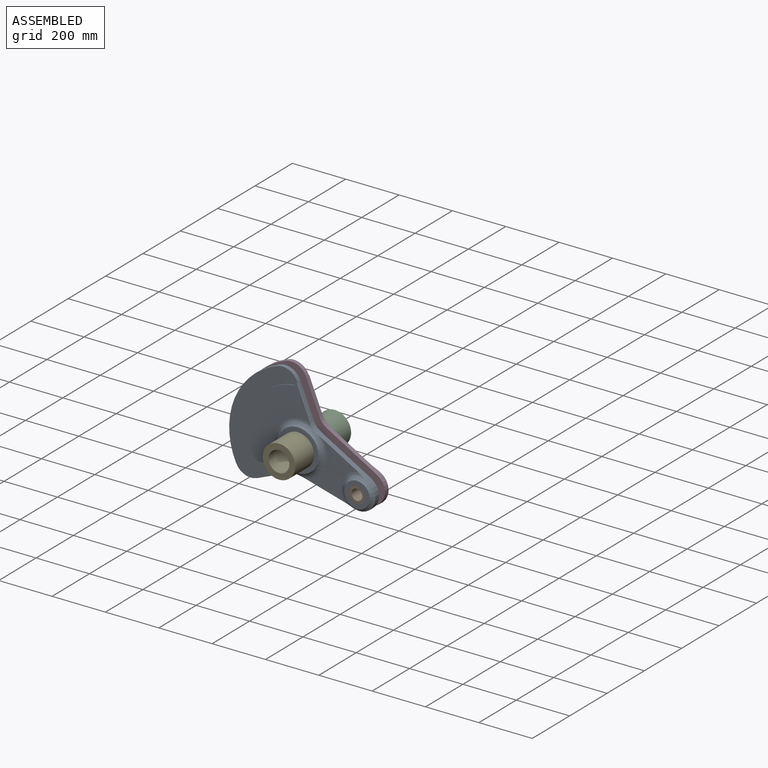
[diagram: assembled view]
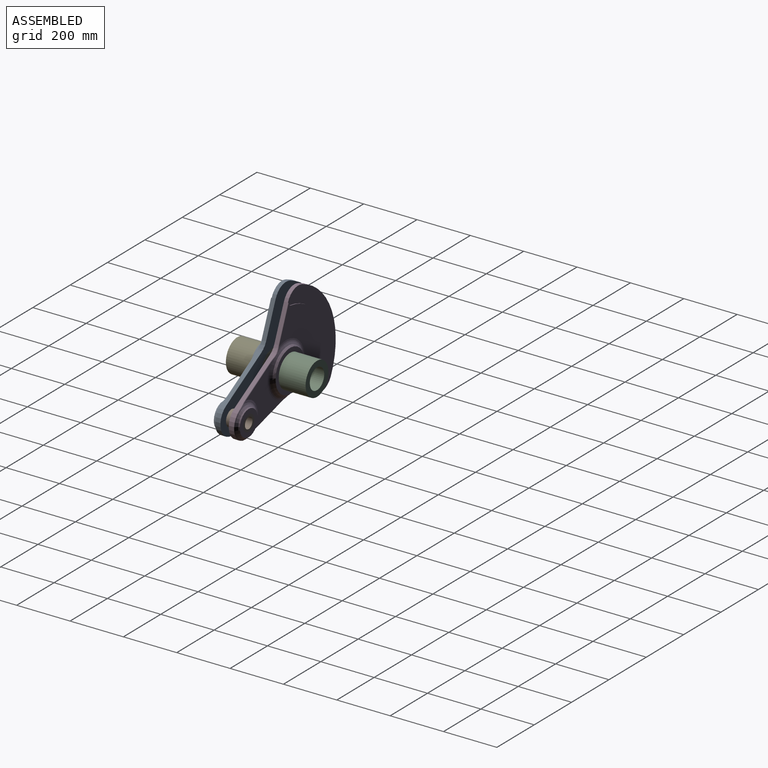
[diagram: assembled view, second angle]
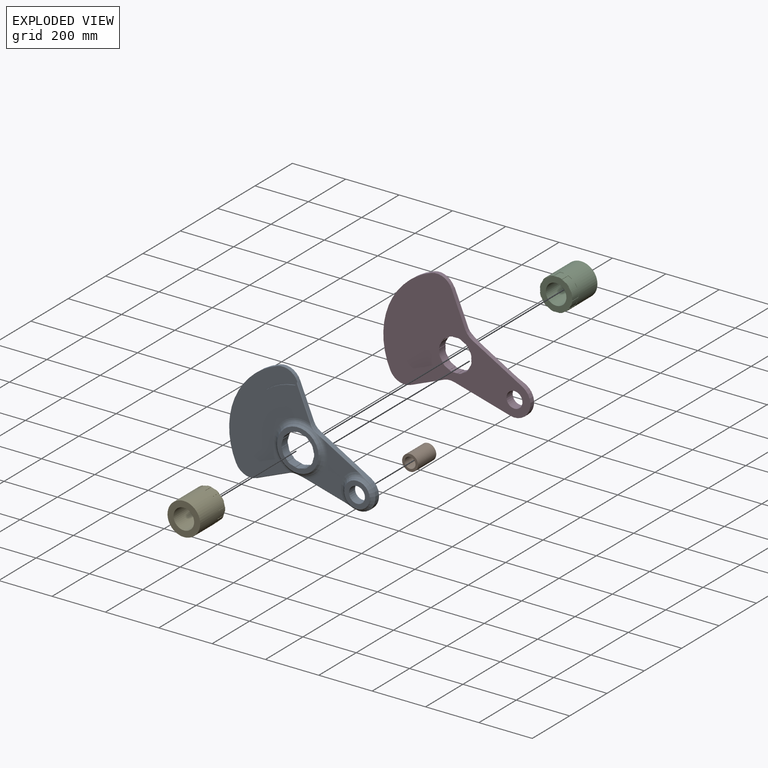
[diagram: exploded view]
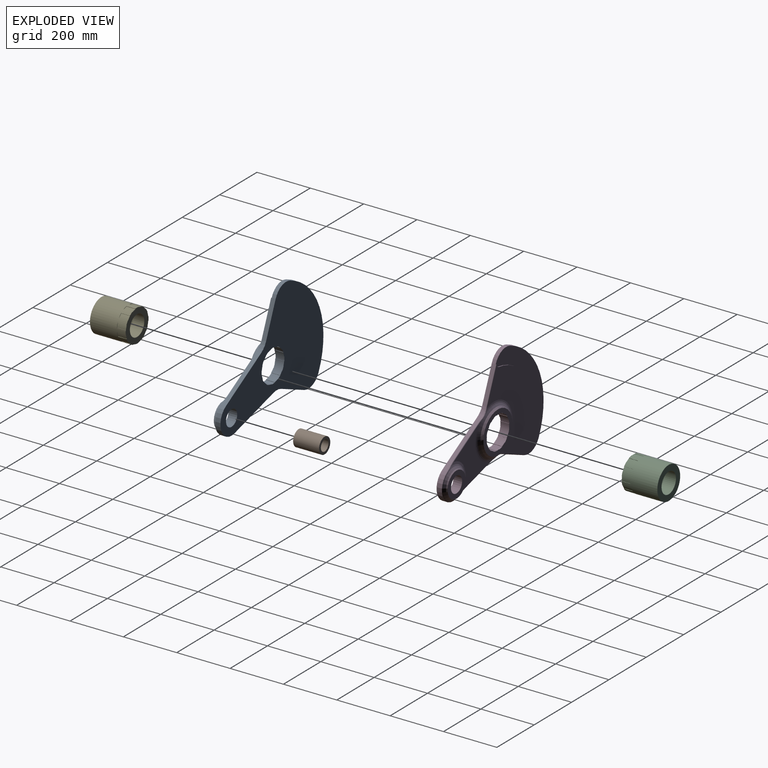
[diagram: exploded view, second angle]
ASSEMBLY  parts=5 mates=4
PART A: 85 faces, bbox 432.4x42.2x604.6 mm
  f0: cylinder r=60mm len=82.55mm, axis (0,1,0), area 1355.2mm2, adj f1,f3,f24,f84
  f1: cylinder r=270mm len=401.48mm, axis (0,1,0), area 6735.6mm2, adj f0,f2,f3,f84
  f2: cylinder r=60mm len=82.55mm, axis (0,1,0), area 1355.2mm2, adj f1,f3,f18,f84
  f3: plane 570x432.26mm, normal (0,1,0), area 116787.6mm2, adj f0,f1,f2,f5,f6,f7,f8,f9
  f4: plane 156x156mm, normal (0,-1,0), area 7575.3mm2, adj f5,f6,f7,f8,f9,f10,f11,f12
  f5: cylinder r=60mm len=33mm, axis (0,1,0), area 518.4mm2, adj f3,f4,f30,f63
  f6: cylinder r=60mm len=33mm, axis (0,1,0), area 518.4mm2, adj f3,f4,f60,f64
  f7: cylinder r=60mm len=33mm, axis (0,1,0), area 518.4mm2, adj f3,f4,f57,f61
  f8: cylinder r=60mm len=33mm, axis (0,1,0), area 518.4mm2, adj f3,f4,f54,f58
  f9: cylinder r=60mm len=33mm, axis (0,1,0), area 518.4mm2, adj f3,f4,f51,f55
  f10: cylinder r=60mm len=33mm, axis (0,1,0), area 518.4mm2, adj f3,f4,f48,f52
  f11: cylinder r=60mm len=33mm, axis (0,1,0), area 518.4mm2, adj f3,f4,f45,f49
  f12: cylinder r=60mm len=33mm, axis (0,1,0), area 518.4mm2, adj f3,f4,f42,f46
  f13: cylinder r=60mm len=33mm, axis (0,1,0), area 518.4mm2, adj f3,f4,f39,f43
  f14: cylinder r=60mm len=33mm, axis (0,1,0), area 518.4mm2, adj f3,f4,f36,f40
  f15: cylinder r=60mm len=33mm, axis (0,1,0), area 518.4mm2, adj f3,f4,f33,f37
  f16: cylinder r=60mm len=33mm, axis (0,1,0), area 518.4mm2, adj f3,f4,f31,f34
  f17: plane 161.64x147.99mm, normal (0,-1,0), area 13202.3mm2, adj f28,f29,f70,f74
  f18: plane 94.73x94.73mm, normal (0.71,0,0.71), area 2089.9mm2, adj f2,f3,f19,f78,f80
  f19: cylinder r=60mm len=34.93mm, axis (0,1,0), area 674.4mm2, adj f3,f18,f20,f76,f77
  f20: plane 215.89x27.23mm, normal (0.99,0,0.12), area 3483.1mm2, adj f3,f19,f21,f73,f74,f75
  f21: cylinder r=60mm len=119.06mm, axis (0,1,0), area 3265.7mm2, adj f3,f20,f22,f72
  f22: plane 215.89x27.23mm, normal (-0.99,0,0.12), area 3483.1mm2, adj f3,f21,f23,f69,f70,f71
  f23: cylinder r=60mm len=34.93mm, axis (0,1,0), area 674.4mm2, adj f3,f22,f24,f67,f68
  f24: plane 94.73x94.73mm, normal (-0.71,0,0.71), area 2089.9mm2, adj f0,f3,f23,f66,f83
  f25: plane 387.62x206.46mm, normal (0,-1,0), area 42260.8mm2, adj f29,f66,f67,f77,f78,f79,f81,f82
  f26: plane 96x96mm, normal (0,-1,0), area 4410.8mm2, adj f27,f28
  f27: cylinder r=30mm len=60mm, axis (0,1,0), area 6220.4mm2, adj f3,f26
  f28: torus R=70.25mm, axis (0,-1,0), area 7423.4mm2, adj f17,f26,f71,f72,f73
  f29: torus R=100.25mm, axis (0,-1,0), area 14789mm2, adj f4,f17,f25,f68,f69,f75,f76
  f30: plane 33x1.15mm, normal (-0.96,0,0.28), area 39.6mm2, adj f3,f4,f5,f32
  f31: plane 33x1.2mm, normal (1,0,-0.02), area 39.6mm2, adj f3,f4,f16,f32
  f32: cylinder r=61.2mm len=33mm, axis (0,-1,0), area 528.7mm2, adj f3,f4,f30,f31
  f33: plane 33x1.05mm, normal (0.88,0,0.48), area 39.6mm2, adj f3,f4,f15,f35
  f34: plane 33x1.17mm, normal (-0.97,0,-0.24), area 39.6mm2, adj f3,f4,f16,f35
  f35: cylinder r=61.2mm len=33mm, axis (0,-1,0), area 528.7mm2, adj f3,f4,f33,f34
  f36: plane 33x1.03mm, normal (0.52,0,0.86), area 39.6mm2, adj f3,f4,f14,f38
  f37: plane 33x0.87mm, normal (-0.72,0,-0.69), area 39.6mm2, adj f3,f4,f15,f38
  f38: cylinder r=61.2mm len=33mm, axis (0,-1,0), area 528.7mm2, adj f3,f4,f36,f37
  f39: plane 33x1.2mm, normal (0.02,0,1), area 39.6mm2, adj f3,f4,f13,f41
  f40: plane 33x1.15mm, normal (-0.28,0,-0.96), area 39.6mm2, adj f3,f4,f14,f41
  f41: cylinder r=61.2mm len=33mm, axis (0,-1,0), area 528.7mm2, adj f3,f4,f39,f40
  f42: plane 33x1.05mm, normal (-0.48,0,0.88), area 39.6mm2, adj f3,f4,f12,f44
  f43: plane 33x1.17mm, normal (0.24,0,-0.97), area 39.6mm2, adj f3,f4,f13,f44
  f44: cylinder r=61.2mm len=33mm, axis (0,-1,0), area 528.7mm2, adj f3,f4,f42,f43
  f45: plane 33x1.03mm, normal (-0.86,0,0.52), area 39.6mm2, adj f3,f4,f11,f47
  f46: plane 33x0.87mm, normal (0.69,0,-0.72), area 39.6mm2, adj f3,f4,f12,f47
  f47: cylinder r=61.2mm len=33mm, axis (0,-1,0), area 528.7mm2, adj f3,f4,f45,f46
  f48: plane 33x1.2mm, normal (-1,0,0.02), area 39.6mm2, adj f3,f4,f10,f50
  f49: plane 33x1.15mm, normal (0.96,0,-0.28), area 39.6mm2, adj f3,f4,f11,f50
  f50: cylinder r=61.2mm len=33mm, axis (0,-1,0), area 528.7mm2, adj f3,f4,f48,f49
  f51: plane 33x1.05mm, normal (-0.88,0,-0.48), area 39.6mm2, adj f3,f4,f9,f53
  f52: plane 33x1.17mm, normal (0.97,0,0.24), area 39.6mm2, adj f3,f4,f10,f53
  f53: cylinder r=61.2mm len=33mm, axis (0,-1,0), area 528.7mm2, adj f3,f4,f51,f52
  f54: plane 33x1.03mm, normal (-0.52,0,-0.86), area 39.6mm2, adj f3,f4,f8,f56
  f55: plane 33x0.87mm, normal (0.72,0,0.69), area 39.6mm2, adj f3,f4,f9,f56
  f56: cylinder r=61.2mm len=33mm, axis (0,-1,0), area 528.7mm2, adj f3,f4,f54,f55
  f57: plane 33x1.2mm, normal (-0.02,0,-1), area 39.6mm2, adj f3,f4,f7,f59
  f58: plane 33x1.15mm, normal (0.28,0,0.96), area 39.6mm2, adj f3,f4,f8,f59
  f59: cylinder r=61.2mm len=33mm, axis (0,-1,0), area 528.7mm2, adj f3,f4,f57,f58
  f60: plane 33x1.05mm, normal (0.48,0,-0.88), area 39.6mm2, adj f3,f4,f6,f62
  f61: plane 33x1.17mm, normal (-0.24,0,0.97), area 39.6mm2, adj f3,f4,f7,f62
  f62: cylinder r=61.2mm len=33mm, axis (0,-1,0), area 528.7mm2, adj f3,f4,f60,f61
  f63: plane 33x1.03mm, normal (0.86,0,-0.52), area 39.6mm2, adj f3,f4,f5,f65
  f64: plane 33x0.87mm, normal (-0.69,0,0.72), area 39.6mm2, adj f3,f4,f6,f65
  f65: cylinder r=61.2mm len=33mm, axis (0,-1,0), area 528.7mm2, adj f3,f4,f63,f64
  f66: cylinder r=2.4mm len=96.43mm, axis (0.71,0,0.71), area 497.9mm2, adj f24,f25,f67,f79,f83
  f67: torus R=62.4mm, axis (0,-1,0), area 10.2mm2, adj f23,f25,f66,f68
  f68: bspline ~37.17x17.6mm, area 114.1mm2, adj f23,f29,f67,f69
  f69: bspline ~39.42x7.6mm, area 92mm2, adj f22,f29,f68,f70
  f70: cylinder r=2.4mm len=148.29mm, axis (0.12,0,0.99), area 562.3mm2, adj f17,f22,f69,f71
  f71: bspline ~49.05x7.42mm, area 122.1mm2, adj f22,f28,f70,f72
  f72: torus R=57.6mm, axis (0,-1,0), area 442.7mm2, adj f21,f28,f71,f73
  f73: bspline ~45.74x6.99mm, area 122.1mm2, adj f20,f28,f72,f74
  f74: cylinder r=2.4mm len=148.29mm, axis (0.12,0,-0.99), area 562.3mm2, adj f17,f20,f73,f75
  f75: bspline ~39.42x7.6mm, area 92mm2, adj f20,f29,f74,f76
  f76: bspline ~37.17x17.6mm, area 114.1mm2, adj f19,f29,f75,f77
  f77: torus R=62.4mm, axis (0,-1,0), area 10.2mm2, adj f19,f25,f76,f78
  f78: cylinder r=2.4mm len=96.43mm, axis (0.71,0,-0.71), area 497.9mm2, adj f18,f25,f77,f80,f81
  f79: cylinder r=12mm len=15.77mm, axis (0,-1,0), area 52.8mm2, adj f25,f66,f82,f83,f84
  f80: plane 1.57x0.45mm, normal (-0.44,0,-0.9), area 0.4mm2, adj f18,f78,f81,f84
  f81: cylinder r=12mm len=15.77mm, axis (0,-1,0), area 52.8mm2, adj f25,f78,f80,f82,f84
  f82: cylinder r=209.43mm len=364.99mm, axis (0,-1,0), area 1382.7mm2, adj f25,f79,f81,f84
  f83: plane 1.57x0.45mm, normal (0.44,0,-0.9), area 0.4mm2, adj f24,f66,f79,f84
  f84: plane 432.26x173.37mm, normal (0,-1,0), area 30314.2mm2, adj f0,f1,f2,f79,f80,f81,f82,f83
PART B: 4 faces, bbox 60x97.2x60 mm
  f0: cylinder r=30mm len=97.2mm, axis (0,-1,0), area 18321.8mm2, adj f1,f2
  f1: plane 60x60mm, normal (0,1,0), area 1535.8mm2, adj f0,f3
  f2: plane 60x60mm, normal (0,-1,0), area 1535.8mm2, adj f0,f3
  f3: cylinder r=20.28mm len=97.2mm, axis (0,-1,0), area 12383.5mm2, adj f1,f2
PART C: 52 faces, bbox 122.4x133.8x122.4 mm
  f0: plane 122.38x122.38mm, normal (0,1,0), area 6852.9mm2, adj f1,f2,f3,f4,f5,f6,f7,f8
  f1: plane 33x1.15mm, normal (0.96,0,-0.28), area 39.6mm2, adj f0,f35,f36,f48
  f2: plane 33x1.2mm, normal (-1,0,0.02), area 39.6mm2, adj f0,f3,f36,f38
  f3: cylinder r=60mm len=33mm, axis (0,-1,0), area 518.4mm2, adj f0,f2,f4,f38
  f4: plane 33x1.17mm, normal (0.97,0,0.24), area 39.6mm2, adj f0,f3,f36,f38
  f5: plane 33x1.05mm, normal (-0.88,0,-0.48), area 39.6mm2, adj f0,f6,f36,f39
  f6: cylinder r=60mm len=33mm, axis (0,-1,0), area 518.4mm2, adj f0,f5,f7,f39
  f7: plane 33x0.87mm, normal (0.72,0,0.69), area 39.6mm2, adj f0,f6,f36,f39
  f8: plane 33x1.03mm, normal (-0.52,0,-0.86), area 39.6mm2, adj f0,f9,f36,f40
  f9: cylinder r=60mm len=33mm, axis (0,-1,0), area 518.4mm2, adj f0,f8,f10,f40
  f10: plane 33x1.15mm, normal (0.28,0,0.96), area 39.6mm2, adj f0,f9,f36,f40
  f11: plane 33x1.2mm, normal (-0.02,0,-1), area 39.6mm2, adj f0,f12,f36,f41
  f12: cylinder r=60mm len=33mm, axis (0,-1,0), area 518.4mm2, adj f0,f11,f13,f41
  f13: plane 33x1.17mm, normal (-0.24,0,0.97), area 39.6mm2, adj f0,f12,f36,f41
  f14: plane 33x1.05mm, normal (0.48,0,-0.88), area 39.6mm2, adj f0,f15,f36,f42
  f15: cylinder r=60mm len=33mm, axis (0,-1,0), area 518.4mm2, adj f0,f14,f16,f42
  f16: plane 33x0.87mm, normal (-0.69,0,0.72), area 39.6mm2, adj f0,f15,f36,f42
  f17: plane 33x1.03mm, normal (0.86,0,-0.52), area 39.6mm2, adj f0,f18,f36,f43
  f18: cylinder r=60mm len=33mm, axis (0,-1,0), area 518.4mm2, adj f0,f17,f19,f43
  f19: plane 33x1.15mm, normal (-0.96,0,0.28), area 39.6mm2, adj f0,f18,f36,f43
  f20: plane 33x1.2mm, normal (1,0,-0.02), area 39.6mm2, adj f0,f21,f36,f44
  f21: cylinder r=60mm len=33mm, axis (0,-1,0), area 518.4mm2, adj f0,f20,f22,f44
  f22: plane 33x1.17mm, normal (-0.97,0,-0.24), area 39.6mm2, adj f0,f21,f36,f44
  f23: plane 33x1.05mm, normal (0.88,0,0.48), area 39.6mm2, adj f0,f24,f36,f45
  f24: cylinder r=60mm len=33mm, axis (0,-1,0), area 518.4mm2, adj f0,f23,f25,f45
  f25: plane 33x0.87mm, normal (-0.72,0,-0.69), area 39.6mm2, adj f0,f24,f36,f45
  f26: plane 33x1.03mm, normal (0.52,0,0.86), area 39.6mm2, adj f0,f27,f36,f46
  f27: cylinder r=60mm len=33mm, axis (0,-1,0), area 518.4mm2, adj f0,f26,f28,f46
  f28: plane 33x1.15mm, normal (-0.28,0,-0.96), area 39.6mm2, adj f0,f27,f36,f46
  f29: plane 33x1.2mm, normal (0.02,0,1), area 39.6mm2, adj f0,f30,f36,f47
  f30: cylinder r=60mm len=33mm, axis (0,-1,0), area 518.4mm2, adj f0,f29,f31,f47
  f31: plane 33x1.17mm, normal (0.24,0,-0.97), area 39.6mm2, adj f0,f30,f36,f47
  f32: plane 33x1.05mm, normal (-0.48,0,0.88), area 39.6mm2, adj f0,f33,f36,f50
  f33: cylinder r=60mm len=33mm, axis (0,-1,0), area 518.4mm2, adj f0,f32,f34,f50
  f34: plane 33x0.87mm, normal (0.69,0,-0.72), area 39.6mm2, adj f0,f33,f36,f50
  f35: cylinder r=60mm len=33mm, axis (0,-1,0), area 518.4mm2, adj f0,f1,f37,f48
  f36: cylinder r=61.2mm len=133.8mm, axis (0,-1,0), area 45105.5mm2, adj f0,f1,f2,f4,f5,f7,f8,f10
  f37: plane 33x1.03mm, normal (-0.86,0,0.52), area 39.6mm2, adj f0,f35,f36,f48
  f38: plane 15.88x2.95mm, normal (0,1,0), area 19mm2, adj f2,f3,f4,f36
  f39: plane 13.45x10.34mm, normal (0,1,0), area 19mm2, adj f5,f6,f7,f36
  f40: plane 14.97x7.43mm, normal (0,1,0), area 19mm2, adj f8,f9,f10,f36
  f41: plane 15.88x2.95mm, normal (0,1,0), area 19mm2, adj f11,f12,f13,f36
  f42: plane 13.45x10.34mm, normal (0,1,0), area 19mm2, adj f14,f15,f16,f36
  f43: plane 14.97x7.43mm, normal (0,1,0), area 19mm2, adj f17,f18,f19,f36
  f44: plane 15.88x2.95mm, normal (0,1,0), area 19mm2, adj f20,f21,f22,f36
  f45: plane 13.45x10.34mm, normal (0,1,0), area 19mm2, adj f23,f24,f25,f36
  f46: plane 14.97x7.43mm, normal (0,1,0), area 19mm2, adj f26,f27,f28,f36
  f47: plane 15.88x2.95mm, normal (0,1,0), area 19mm2, adj f29,f30,f31,f36
  f48: plane 14.97x7.43mm, normal (0,1,0), area 19mm2, adj f1,f35,f36,f37
  f49: plane 122.4x122.4mm, normal (0,-1,0), area 7081.4mm2, adj f36,f51
  f50: plane 13.45x10.34mm, normal (0,1,0), area 19mm2, adj f32,f33,f34,f36
  f51: cylinder r=38.62mm len=133.8mm, axis (0,-1,0), area 32466mm2, adj f0,f49
PART D: same geometry as A
PART E: same geometry as C
PLACE A rot(axis=(0,1,0),112.6deg) t=(-189.48,38.25,-383.75)mm
PLACE B rot(axis=(0,1,0),112.6deg) t=(-189.48,38.25,-383.75)mm
PLACE C rot(axis=(0.55,0,-0.83),180deg) t=(-189.48,88.95,-383.75)mm
PLACE D rot(axis=(-0.83,0,-0.55),180deg) t=(-189.48,88.95,-383.75)mm
PLACE E rot(axis=(0,1,0),112.6deg) t=(-189.48,38.25,-383.75)mm
MATE fastened E.f3 <-> A.f56  axis (0,1,0) through (-189.48,48,-383.75)mm
MATE fastened B.f0 <-> A.f27  axis (0,-1,0) through (32.1,15,-475.96)mm
MATE fastened C.f3 <-> D.f65  axis (0,-1,0) through (-189.48,79.2,-383.75)mm
MATE fastened B.f0 <-> D.f27  axis (0,1,0) through (32.1,112.2,-475.96)mm
